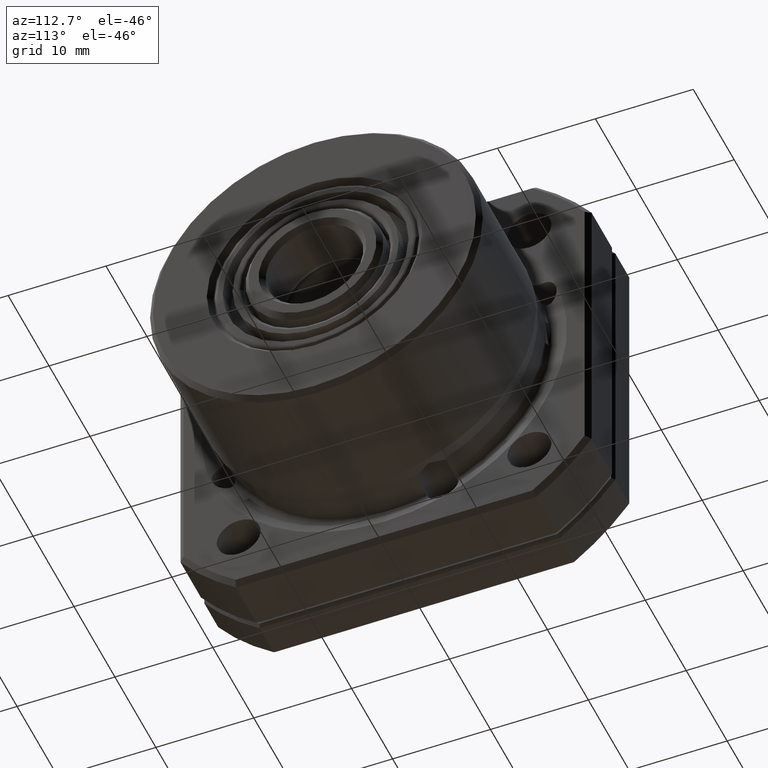
[diagram: clean part render]
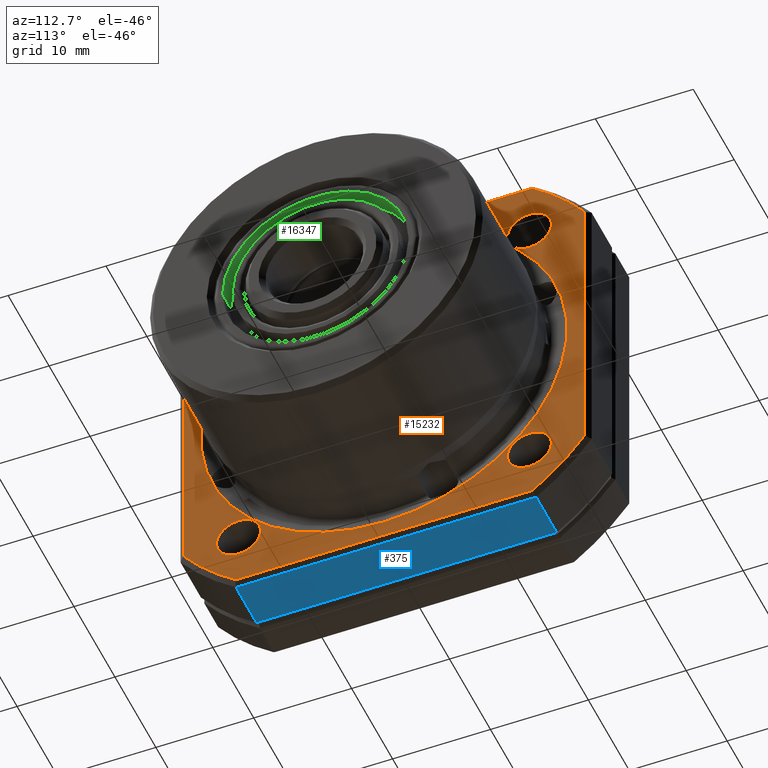
[diagram: same view with three faces highlighted in distinct colors, each labeled with its STEP entity id]
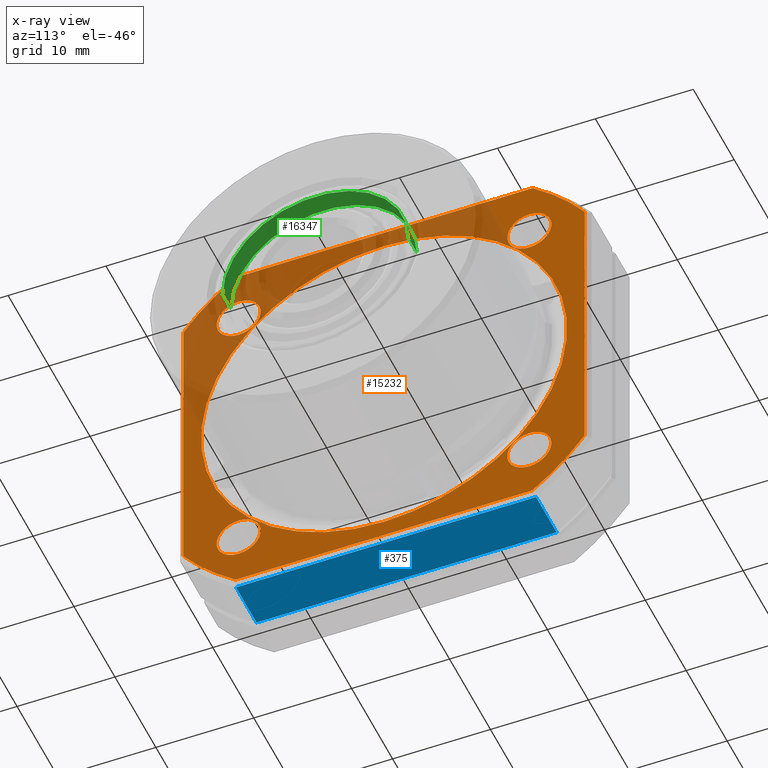
[diagram: x-ray of the same camera — body ghosted, the three highlighted faces saturated]
A machine part, auxiliary view with three faces highlighted in distinct colors.
The next image is the same camera in x-ray (body ghosted, the three faces saturated) — at least one of them is partly hidden behind the body in this view.
Their STEP definitions:

[orange] entity #15232 — the highlighted planar face has unit normal (-1, 0, -0).
#37 = EDGE_LOOP ( 'NONE', ( #39, #40 ) ) ;
#39 = ORIENTED_EDGE ( 'NONE', *, *, #45, .T. ) ;
#40 = ORIENTED_EDGE ( 'NONE', *, *, #15265, .T. ) ;
#45 = EDGE_CURVE ( 'NONE', #15253, #15278, #19049, .T. ) ;
#48 = ORIENTED_EDGE ( 'NONE', *, *, #19492, .T. ) ;
#55 = ORIENTED_EDGE ( 'NONE', *, *, #63, .T. ) ;
#58 = ORIENTED_EDGE ( 'NONE', *, *, #15612, .T. ) ;
#60 = EDGE_CURVE ( 'NONE', #15375, #19315, #19035, .T. ) ;
#61 = EDGE_LOOP ( 'NONE', ( #48, #55 ) ) ;
#63 = EDGE_CURVE ( 'NONE', #19482, #19540, #19090, .T. ) ;
#242 = EDGE_CURVE ( 'NONE', #15245, #15252, #19350, .T. ) ;
#245 = ORIENTED_EDGE ( 'NONE', *, *, #242, .T. ) ;
#248 = ORIENTED_EDGE ( 'NONE', *, *, #257, .T. ) ;
#249 = ORIENTED_EDGE ( 'NONE', *, *, #15249, .T. ) ;
#250 = EDGE_LOOP ( 'NONE', ( #245, #249 ) ) ;
#253 = EDGE_CURVE ( 'NONE', #15226, #15233, #19329, .T. ) ;
#254 = EDGE_LOOP ( 'NONE', ( #15324, #15326 ) ) ;
#257 = EDGE_CURVE ( 'NONE', #15233, #15315, #19385, .T. ) ;
#1042 = CARTESIAN_POINT ( 'NONE',  ( 6.000000000000000000, 14.84924240491752200, 14.84924240491747600 ) ) ;
#1043 = AXIS2_PLACEMENT_3D ( 'NONE', #1042, #1104, #1103 ) ;
#1044 = CIRCLE ( 'NONE', #1043, 2.249999999999998700 ) ;
#1045 = CARTESIAN_POINT ( 'NONE',  ( 6.000000000000000000, 14.84924240491752200, 12.59924240491747900 ) ) ;
#1073 = FACE_BOUND ( 'NONE', #61, .T. ) ;
#1074 = FACE_BOUND ( 'NONE', #15327, .T. ) ;
#1075 = FACE_BOUND ( 'NONE', #254, .T. ) ;
#1076 = FACE_BOUND ( 'NONE', #37, .T. ) ;
#1081 = FACE_BOUND ( 'NONE', #250, .T. ) ;
#1082 = FACE_OUTER_BOUND ( 'NONE', #15308, .T. ) ;
#1085 = CARTESIAN_POINT ( 'NONE',  ( 6.000000000000000000, -20.50000000000001400, 15.16575088810309400 ) ) ;
#1086 = CARTESIAN_POINT ( 'NONE',  ( 6.000000000000000000, -20.50000000000001400, -15.16575088810309400 ) ) ;
#1087 = DIRECTION ( 'NONE',  ( 0.0000000000000000000, 0.0000000000000000000, -1.000000000000000000 ) ) ;
#1088 = VECTOR ( 'NONE', #1087, 1000.000000000000000 ) ;
#1089 = CARTESIAN_POINT ( 'NONE',  ( 6.000000000000000000, -20.50000000000001400, -15.32970971675589000 ) ) ;
#1090 = LINE ( 'NONE', #1089, #1088 ) ;
#1103 = DIRECTION ( 'NONE',  ( 0.0000000000000000000, 0.0000000000000000000, 1.000000000000000000 ) ) ;
#1104 = DIRECTION ( 'NONE',  ( -1.000000000000000000, -0.0000000000000000000, -0.0000000000000000000 ) ) ;
#1112 = CARTESIAN_POINT ( 'NONE',  ( 6.000000000000000000, -14.84924240491752200, -12.59924240491747900 ) ) ;
#1113 = DIRECTION ( 'NONE',  ( 0.0000000000000000000, -1.000000000000000000, 0.0000000000000000000 ) ) ;
#1114 = VECTOR ( 'NONE', #1113, 1000.000000000000000 ) ;
#1115 = CARTESIAN_POINT ( 'NONE',  ( 6.000000000000000000, -15.32970971675587400, 20.50000000000001800 ) ) ;
#1116 = LINE ( 'NONE', #1115, #1114 ) ;
#1117 = CARTESIAN_POINT ( 'NONE',  ( 6.000000000000000000, 15.16575088810308700, 20.50000000000001800 ) ) ;
#1118 = DIRECTION ( 'NONE',  ( 0.0000000000000000000, 0.0000000000000000000, 1.000000000000000000 ) ) ;
#1119 = DIRECTION ( 'NONE',  ( 1.000000000000000000, 0.0000000000000000000, 0.0000000000000000000 ) ) ;
#1120 = CARTESIAN_POINT ( 'NONE',  ( 6.000000000000000000, 0.0000000000000000000, 0.0000000000000000000 ) ) ;
#1121 = AXIS2_PLACEMENT_3D ( 'NONE', #1120, #1119, #1118 ) ;
#1122 = CIRCLE ( 'NONE', #1121, 25.50000000000000700 ) ;
#1123 = CARTESIAN_POINT ( 'NONE',  ( 6.000000000000000000, -15.16575088810308700, 20.50000000000001800 ) ) ;
#1133 = CARTESIAN_POINT ( 'NONE',  ( 6.000000000000000000, -15.16575088810308700, -20.50000000000001800 ) ) ;
#1134 = DIRECTION ( 'NONE',  ( -0.0000000000000000000, 0.0000000000000000000, 1.000000000000000000 ) ) ;
#1135 = DIRECTION ( 'NONE',  ( -1.000000000000000000, 0.0000000000000000000, -0.0000000000000000000 ) ) ;
#1136 = CARTESIAN_POINT ( 'NONE',  ( 6.000000000000000000, 26.00000000000000000, 0.0000000000000000000 ) ) ;
#1137 = AXIS2_PLACEMENT_3D ( 'NONE', #1136, #1135, #1134 ) ;
#1138 = PLANE ( 'NONE',  #1137 ) ;
#1139 = CARTESIAN_POINT ( 'NONE',  ( 6.000000000000000000, -14.84924240491752200, 14.84924240491747600 ) ) ;
#1140 = AXIS2_PLACEMENT_3D ( 'NONE', #1139, #1195, #1194 ) ;
#1141 = CIRCLE ( 'NONE', #1140, 2.249999999999998700 ) ;
#1151 = DIRECTION ( 'NONE',  ( 0.0000000000000000000, -1.652117596168386800E-016, 1.000000000000000000 ) ) ;
#1152 = VECTOR ( 'NONE', #1151, 1000.000000000000000 ) ;
#1153 = CARTESIAN_POINT ( 'NONE',  ( 6.000000000000000000, 20.49999999999999600, 15.32970971675590200 ) ) ;
#1154 = LINE ( 'NONE', #1153, #1152 ) ;
#1155 = CARTESIAN_POINT ( 'NONE',  ( 6.000000000000000000, 20.49999999999999600, 15.16575088810312300 ) ) ;
#1156 = DIRECTION ( 'NONE',  ( 0.0000000000000000000, 1.243449787580175300E-014, 1.000000000000000000 ) ) ;
#1157 = DIRECTION ( 'NONE',  ( 1.000000000000000000, 0.0000000000000000000, 0.0000000000000000000 ) ) ;
#1158 = CARTESIAN_POINT ( 'NONE',  ( 6.000000000000000000, 0.0000000000000000000, 0.0000000000000000000 ) ) ;
#1159 = AXIS2_PLACEMENT_3D ( 'NONE', #1158, #1157, #1156 ) ;
#1160 = CIRCLE ( 'NONE', #1159, 25.50000000000000700 ) ;
#1161 = CARTESIAN_POINT ( 'NONE',  ( 6.000000000000000000, -14.84924240491752200, 17.09924240491747600 ) ) ;
#1162 = CARTESIAN_POINT ( 'NONE',  ( 6.000000000000000000, -14.84924240491752200, -17.09924240491747600 ) ) ;
#1163 = DIRECTION ( 'NONE',  ( 0.0000000000000000000, 0.0000000000000000000, 1.000000000000000000 ) ) ;
#1164 = DIRECTION ( 'NONE',  ( -1.000000000000000000, -0.0000000000000000000, -0.0000000000000000000 ) ) ;
#1165 = CARTESIAN_POINT ( 'NONE',  ( 6.000000000000000000, -14.84924240491752200, -14.84924240491747600 ) ) ;
#1166 = AXIS2_PLACEMENT_3D ( 'NONE', #1165, #1164, #1163 ) ;
#1167 = CIRCLE ( 'NONE', #1166, 2.249999999999996900 ) ;
#1168 = CARTESIAN_POINT ( 'NONE',  ( 6.000000000000000000, -14.84924240491752200, 12.59924240491747900 ) ) ;
#1173 = CARTESIAN_POINT ( 'NONE',  ( 6.000000000000000000, 20.50000000000000400, -15.16575088810311200 ) ) ;
#1175 = DIRECTION ( 'NONE',  ( 0.0000000000000000000, 0.0000000000000000000, 1.000000000000000000 ) ) ;
#1176 = DIRECTION ( 'NONE',  ( 1.000000000000000000, 0.0000000000000000000, 0.0000000000000000000 ) ) ;
#1177 = CARTESIAN_POINT ( 'NONE',  ( 6.000000000000000000, 0.0000000000000000000, 0.0000000000000000000 ) ) ;
#1178 = AXIS2_PLACEMENT_3D ( 'NONE', #1177, #1176, #1175 ) ;
#1179 = CIRCLE ( 'NONE', #1178, 25.50000000000000700 ) ;
#1194 = DIRECTION ( 'NONE',  ( 0.0000000000000000000, 0.0000000000000000000, 1.000000000000000000 ) ) ;
#1195 = DIRECTION ( 'NONE',  ( -1.000000000000000000, -0.0000000000000000000, -0.0000000000000000000 ) ) ;
#1206 = CARTESIAN_POINT ( 'NONE',  ( 6.000000000000000000, 14.84924240491752200, 17.09924240491747600 ) ) ;
#1259 = DIRECTION ( 'NONE',  ( 0.0000000000000000000, 0.0000000000000000000, 1.000000000000000000 ) ) ;
#1260 = DIRECTION ( 'NONE',  ( -1.000000000000000000, -0.0000000000000000000, -0.0000000000000000000 ) ) ;
#1261 = CARTESIAN_POINT ( 'NONE',  ( 6.000000000000000000, 14.84924240491752200, 14.84924240491747600 ) ) ;
#1262 = AXIS2_PLACEMENT_3D ( 'NONE', #1261, #1260, #1259 ) ;
#1263 = CIRCLE ( 'NONE', #1262, 2.249999999999998700 ) ;
#1273 = CARTESIAN_POINT ( 'NONE',  ( 6.000000000000000000, 15.16575088810308700, -20.50000000000001800 ) ) ;
#1406 = CARTESIAN_POINT ( 'NONE',  ( 6.000000000000000000, 14.84924240491752200, -12.59924240491747900 ) ) ;
#1844 = DIRECTION ( 'NONE',  ( 0.0000000000000000000, 0.0000000000000000000, 1.000000000000000000 ) ) ;
#1845 = DIRECTION ( 'NONE',  ( -1.000000000000000000, -0.0000000000000000000, -0.0000000000000000000 ) ) ;
#1846 = CARTESIAN_POINT ( 'NONE',  ( 6.000000000000000000, 14.84924240491752200, -14.84924240491747600 ) ) ;
#1847 = AXIS2_PLACEMENT_3D ( 'NONE', #1846, #1845, #1844 ) ;
#1848 = CIRCLE ( 'NONE', #1847, 2.249999999999996900 ) ;
#14582 = CARTESIAN_POINT ( 'NONE',  ( 6.000000000000000000, 14.84924240491752200, -17.09924240491747600 ) ) ;
#14603 = DIRECTION ( 'NONE',  ( 0.0000000000000000000, 0.0000000000000000000, 1.000000000000000000 ) ) ;
#14604 = DIRECTION ( 'NONE',  ( -1.000000000000000000, -0.0000000000000000000, -0.0000000000000000000 ) ) ;
#14605 = CARTESIAN_POINT ( 'NONE',  ( 6.000000000000005300, 0.0000000000000000000, 0.0000000000000000000 ) ) ;
#14606 = AXIS2_PLACEMENT_3D ( 'NONE', #14605, #14604, #14603 ) ;
#14607 = CIRCLE ( 'NONE', #14606, 18.70000000000000300 ) ;
#14627 = CARTESIAN_POINT ( 'NONE',  ( 6.000000000000005300, 2.290013881647845200E-015, 18.70000000000000300 ) ) ;
#14692 = CARTESIAN_POINT ( 'NONE',  ( 6.000000000000005300, 0.0000000000000000000, -18.70000000000000300 ) ) ;
#15214 = VERTEX_POINT ( 'NONE', #1045 ) ;
#15215 = EDGE_CURVE ( 'NONE', #15214, #15287, #1044, .T. ) ;
#15224 = EDGE_CURVE ( 'NONE', #15229, #15226, #1090, .T. ) ;
#15226 = VERTEX_POINT ( 'NONE', #1086 ) ;
#15228 = ORIENTED_EDGE ( 'NONE', *, *, #15224, .T. ) ;
#15229 = VERTEX_POINT ( 'NONE', #1085 ) ;
#15230 = ORIENTED_EDGE ( 'NONE', *, *, #253, .T. ) ;
#15232 = ADVANCED_FACE ( 'NONE', ( #1082, #1081, #1076, #1075, #1074, #1073 ), #1138, .F. ) ;
#15233 = VERTEX_POINT ( 'NONE', #1133 ) ;
#15240 = VERTEX_POINT ( 'NONE', #1123 ) ;
#15241 = EDGE_CURVE ( 'NONE', #15240, #15229, #1122, .T. ) ;
#15242 = VERTEX_POINT ( 'NONE', #1117 ) ;
#15243 = EDGE_CURVE ( 'NONE', #15242, #15240, #1116, .T. ) ;
#15245 = VERTEX_POINT ( 'NONE', #1112 ) ;
#15248 = ORIENTED_EDGE ( 'NONE', *, *, #15241, .T. ) ;
#15249 = EDGE_CURVE ( 'NONE', #15252, #15245, #1167, .T. ) ;
#15250 = ORIENTED_EDGE ( 'NONE', *, *, #15243, .T. ) ;
#15252 = VERTEX_POINT ( 'NONE', #1162 ) ;
#15253 = VERTEX_POINT ( 'NONE', #1161 ) ;
#15254 = EDGE_CURVE ( 'NONE', #15255, #15242, #1160, .T. ) ;
#15255 = VERTEX_POINT ( 'NONE', #1155 ) ;
#15257 = EDGE_CURVE ( 'NONE', #15276, #15255, #1154, .T. ) ;
#15260 = ORIENTED_EDGE ( 'NONE', *, *, #15257, .T. ) ;
#15265 = EDGE_CURVE ( 'NONE', #15278, #15253, #1141, .T. ) ;
#15271 = EDGE_CURVE ( 'NONE', #15315, #15276, #1179, .T. ) ;
#15274 = ORIENTED_EDGE ( 'NONE', *, *, #15254, .T. ) ;
#15276 = VERTEX_POINT ( 'NONE', #1173 ) ;
#15278 = VERTEX_POINT ( 'NONE', #1168 ) ;
#15287 = VERTEX_POINT ( 'NONE', #1206 ) ;
#15308 = EDGE_LOOP ( 'NONE', ( #15228, #15230, #248, #15314, #15260, #15274, #15250, #15248 ) ) ;
#15314 = ORIENTED_EDGE ( 'NONE', *, *, #15271, .T. ) ;
#15315 = VERTEX_POINT ( 'NONE', #1273 ) ;
#15323 = EDGE_CURVE ( 'NONE', #15287, #15214, #1263, .T. ) ;
#15324 = ORIENTED_EDGE ( 'NONE', *, *, #15323, .T. ) ;
#15326 = ORIENTED_EDGE ( 'NONE', *, *, #15215, .T. ) ;
#15327 = EDGE_LOOP ( 'NONE', ( #15329, #58 ) ) ;
#15329 = ORIENTED_EDGE ( 'NONE', *, *, #60, .T. ) ;
#15375 = VERTEX_POINT ( 'NONE', #1406 ) ;
#15612 = EDGE_CURVE ( 'NONE', #19315, #15375, #1848, .T. ) ;
#19028 = DIRECTION ( 'NONE',  ( -1.000000000000000000, -0.0000000000000000000, -0.0000000000000000000 ) ) ;
#19029 = CARTESIAN_POINT ( 'NONE',  ( 6.000000000000000000, 14.84924240491752200, -14.84924240491747600 ) ) ;
#19030 = AXIS2_PLACEMENT_3D ( 'NONE', #19029, #19028, #19092 ) ;
#19035 = CIRCLE ( 'NONE', #19030, 2.249999999999996900 ) ;
#19045 = DIRECTION ( 'NONE',  ( 0.0000000000000000000, 0.0000000000000000000, 1.000000000000000000 ) ) ;
#19046 = DIRECTION ( 'NONE',  ( -1.000000000000000000, -0.0000000000000000000, -0.0000000000000000000 ) ) ;
#19047 = CARTESIAN_POINT ( 'NONE',  ( 6.000000000000000000, -14.84924240491752200, 14.84924240491747600 ) ) ;
#19048 = AXIS2_PLACEMENT_3D ( 'NONE', #19047, #19046, #19045 ) ;
#19049 = CIRCLE ( 'NONE', #19048, 2.249999999999998700 ) ;
#19086 = DIRECTION ( 'NONE',  ( 0.0000000000000000000, 0.0000000000000000000, 1.000000000000000000 ) ) ;
#19087 = DIRECTION ( 'NONE',  ( -1.000000000000000000, -0.0000000000000000000, -0.0000000000000000000 ) ) ;
#19088 = CARTESIAN_POINT ( 'NONE',  ( 6.000000000000005300, 0.0000000000000000000, 0.0000000000000000000 ) ) ;
#19089 = AXIS2_PLACEMENT_3D ( 'NONE', #19088, #19087, #19086 ) ;
#19090 = CIRCLE ( 'NONE', #19089, 18.70000000000000300 ) ;
#19092 = DIRECTION ( 'NONE',  ( 0.0000000000000000000, 0.0000000000000000000, 1.000000000000000000 ) ) ;
#19315 = VERTEX_POINT ( 'NONE', #14582 ) ;
#19325 = DIRECTION ( 'NONE',  ( 0.0000000000000000000, 0.0000000000000000000, 1.000000000000000000 ) ) ;
#19326 = DIRECTION ( 'NONE',  ( 1.000000000000000000, 0.0000000000000000000, 0.0000000000000000000 ) ) ;
#19327 = CARTESIAN_POINT ( 'NONE',  ( 6.000000000000000000, 0.0000000000000000000, 0.0000000000000000000 ) ) ;
#19328 = AXIS2_PLACEMENT_3D ( 'NONE', #19327, #19326, #19325 ) ;
#19329 = CIRCLE ( 'NONE', #19328, 25.50000000000000700 ) ;
#19342 = DIRECTION ( 'NONE',  ( 0.0000000000000000000, 0.0000000000000000000, 1.000000000000000000 ) ) ;
#19343 = DIRECTION ( 'NONE',  ( -1.000000000000000000, -0.0000000000000000000, -0.0000000000000000000 ) ) ;
#19344 = CARTESIAN_POINT ( 'NONE',  ( 6.000000000000000000, -14.84924240491752200, -14.84924240491747600 ) ) ;
#19345 = AXIS2_PLACEMENT_3D ( 'NONE', #19344, #19343, #19342 ) ;
#19350 = CIRCLE ( 'NONE', #19345, 2.249999999999996900 ) ;
#19381 = DIRECTION ( 'NONE',  ( 0.0000000000000000000, 1.000000000000000000, 0.0000000000000000000 ) ) ;
#19382 = VECTOR ( 'NONE', #19381, 1000.000000000000000 ) ;
#19384 = CARTESIAN_POINT ( 'NONE',  ( 6.000000000000000000, 15.32970971675587400, -20.50000000000001800 ) ) ;
#19385 = LINE ( 'NONE', #19384, #19382 ) ;
#19482 = VERTEX_POINT ( 'NONE', #14627 ) ;
#19492 = EDGE_CURVE ( 'NONE', #19540, #19482, #14607, .T. ) ;
#19540 = VERTEX_POINT ( 'NONE', #14692 ) ;

[blue] entity #375 — the highlighted planar face has unit normal (0, 0, -1).
#42 = EDGE_CURVE ( 'NONE', #47, #256, #19057, .T. ) ;
#47 = VERTEX_POINT ( 'NONE', #19044 ) ;
#251 = VERTEX_POINT ( 'NONE', #19331 ) ;
#256 = VERTEX_POINT ( 'NONE', #19320 ) ;
#375 = ADVANCED_FACE ( 'NONE', ( #483 ), #464, .T. ) ;
#380 = EDGE_LOOP ( 'NONE', ( #400, #398, #390, #15481 ) ) ;
#390 = ORIENTED_EDGE ( 'NONE', *, *, #42, .T. ) ;
#397 = EDGE_CURVE ( 'NONE', #15237, #47, #555, .T. ) ;
#398 = ORIENTED_EDGE ( 'NONE', *, *, #397, .T. ) ;
#400 = ORIENTED_EDGE ( 'NONE', *, *, #15263, .T. ) ;
#460 = DIRECTION ( 'NONE',  ( -1.000000000000000000, 0.0000000000000000000, -0.0000000000000000000 ) ) ;
#461 = DIRECTION ( 'NONE',  ( 0.0000000000000000000, 0.0000000000000000000, -1.000000000000000000 ) ) ;
#462 = CARTESIAN_POINT ( 'NONE',  ( 10.00000000000000000, -21.00000000000000400, -21.00000000000001100 ) ) ;
#463 = AXIS2_PLACEMENT_3D ( 'NONE', #462, #461, #460 ) ;
#464 = PLANE ( 'NONE',  #463 ) ;
#483 = FACE_OUTER_BOUND ( 'NONE', #380, .T. ) ;
#549 = DIRECTION ( 'NONE',  ( -0.0000000000000000000, 1.000000000000000000, 0.0000000000000000000 ) ) ;
#550 = VECTOR ( 'NONE', #549, 1000.000000000000000 ) ;
#551 = CARTESIAN_POINT ( 'NONE',  ( 0.5000000000000073300, 15.32970971675585900, -21.00000000000001100 ) ) ;
#555 = LINE ( 'NONE', #551, #550 ) ;
#1132 = CARTESIAN_POINT ( 'NONE',  ( 0.5000000000000143200, -15.32970971675587400, -21.00000000000001100 ) ) ;
#1142 = DIRECTION ( 'NONE',  ( -1.000000000000000000, -0.0000000000000000000, -0.0000000000000000000 ) ) ;
#1143 = VECTOR ( 'NONE', #1142, 1000.000000000000000 ) ;
#1144 = CARTESIAN_POINT ( 'NONE',  ( -94.46891865289678900, -15.32970971675587400, -21.00000000000001100 ) ) ;
#1145 = LINE ( 'NONE', #1144, #1143 ) ;
#1605 = DIRECTION ( 'NONE',  ( 0.0000000000000000000, -1.000000000000000000, 0.0000000000000000000 ) ) ;
#1606 = VECTOR ( 'NONE', #1605, 1000.000000000000000 ) ;
#1607 = CARTESIAN_POINT ( 'NONE',  ( 5.500000000000000000, -15.32970971675587400, -21.00000000000001100 ) ) ;
#1608 = LINE ( 'NONE', #1607, #1606 ) ;
#15237 = VERTEX_POINT ( 'NONE', #1132 ) ;
#15263 = EDGE_CURVE ( 'NONE', #251, #15237, #1145, .T. ) ;
#15481 = ORIENTED_EDGE ( 'NONE', *, *, #15482, .T. ) ;
#15482 = EDGE_CURVE ( 'NONE', #256, #251, #1608, .T. ) ;
#19044 = CARTESIAN_POINT ( 'NONE',  ( 0.5000000000000143200, 15.32970971675587400, -21.00000000000001100 ) ) ;
#19054 = DIRECTION ( 'NONE',  ( 1.000000000000000000, 0.0000000000000000000, 0.0000000000000000000 ) ) ;
#19055 = VECTOR ( 'NONE', #19054, 1000.000000000000000 ) ;
#19056 = CARTESIAN_POINT ( 'NONE',  ( -94.46891865289678900, 15.32970971675587400, -21.00000000000001100 ) ) ;
#19057 = LINE ( 'NONE', #19056, #19055 ) ;
#19320 = CARTESIAN_POINT ( 'NONE',  ( 5.499999999999991100, 15.32970971675587400, -21.00000000000001100 ) ) ;
#19331 = CARTESIAN_POINT ( 'NONE',  ( 5.499999999999991100, -15.32970971675587400, -21.00000000000001100 ) ) ;

[green] entity #16347 — the highlighted cylindrical surface (partial cylindrical patch) has radius 9.5 mm, axis along (1, 0, -0).
#2972 = CARTESIAN_POINT ( 'NONE',  ( 22.69999999999999900, -9.499999999999991100, -1.745121688784974500E-015 ) ) ;
#2973 = DIRECTION ( 'NONE',  ( 0.0000000000000000000, -1.000000000000000000, -1.836970198721029400E-016 ) ) ;
#2974 = DIRECTION ( 'NONE',  ( 1.000000000000000000, 0.0000000000000000000, -1.232595164407830900E-032 ) ) ;
#2975 = CARTESIAN_POINT ( 'NONE',  ( 22.69999999999999900, -1.872742500049269400E-016, 1.840601620477767100E-030 ) ) ;
#2976 = AXIS2_PLACEMENT_3D ( 'NONE', #2975, #2974, #2973 ) ;
#2977 = CIRCLE ( 'NONE', #2976, 9.499999999999991100 ) ;
#2978 = CARTESIAN_POINT ( 'NONE',  ( 22.69999999999999900, 9.499999999999991100, 5.817456526537211100E-016 ) ) ;
#2979 = DIRECTION ( 'NONE',  ( 1.000000000000000000, 0.0000000000000000000, -1.232595164407830900E-032 ) ) ;
#2980 = VECTOR ( 'NONE', #2979, 1000.000000000000000 ) ;
#2981 = CARTESIAN_POINT ( 'NONE',  ( 75.34089506172838900, 9.499999999999991100, 5.817456526537204200E-016 ) ) ;
#2982 = LINE ( 'NONE', #2981, #2980 ) ;
#2983 = CARTESIAN_POINT ( 'NONE',  ( 20.69999999999999600, -9.499999999999991100, -1.745121688784974500E-015 ) ) ;
#2984 = DIRECTION ( 'NONE',  ( 0.0000000000000000000, -1.000000000000000000, -1.836970198721029400E-016 ) ) ;
#2985 = DIRECTION ( 'NONE',  ( 1.000000000000000000, 0.0000000000000000000, -1.232595164407830900E-032 ) ) ;
#2986 = AXIS2_PLACEMENT_3D ( 'NONE', #2992, #2985, #2984 ) ;
#2987 = CIRCLE ( 'NONE', #2986, 9.499999999999991100 ) ;
#2992 = CARTESIAN_POINT ( 'NONE',  ( 20.69999999999999600, -1.872742500049269400E-016, 1.865253523765924500E-030 ) ) ;
#3028 = DIRECTION ( 'NONE',  ( 1.000000000000000000, 0.0000000000000000000, -1.232595164407830900E-032 ) ) ;
#3029 = VECTOR ( 'NONE', #3028, 1000.000000000000000 ) ;
#3030 = CARTESIAN_POINT ( 'NONE',  ( 75.34089506172838900, -9.499999999999991100, -1.745121688784975300E-015 ) ) ;
#3031 = LINE ( 'NONE', #3030, #3029 ) ;
#3052 = DIRECTION ( 'NONE',  ( 0.0000000000000000000, -1.000000000000000000, -1.836970198721029400E-016 ) ) ;
#3053 = DIRECTION ( 'NONE',  ( 1.000000000000000000, 0.0000000000000000000, -1.232595164407830900E-032 ) ) ;
#3054 = CARTESIAN_POINT ( 'NONE',  ( 75.34089506172838900, -1.872742500049253800E-016, 1.191752493445902600E-030 ) ) ;
#3055 = AXIS2_PLACEMENT_3D ( 'NONE', #3054, #3053, #3052 ) ;
#3056 = CARTESIAN_POINT ( 'NONE',  ( 20.69999999999999600, 9.499999999999991100, 5.817456526537211100E-016 ) ) ;
#3057 = CYLINDRICAL_SURFACE ( 'NONE', #3055, 9.499999999999991100 ) ;
#3058 = FACE_OUTER_BOUND ( 'NONE', #16348, .T. ) ;
#16320 = EDGE_CURVE ( 'NONE', #16350, #16322, #2987, .T. ) ;
#16322 = VERTEX_POINT ( 'NONE', #2983 ) ;
#16323 = ORIENTED_EDGE ( 'NONE', *, *, #16324, .T. ) ;
#16324 = EDGE_CURVE ( 'NONE', #16350, #16325, #2982, .T. ) ;
#16325 = VERTEX_POINT ( 'NONE', #2978 ) ;
#16326 = ORIENTED_EDGE ( 'NONE', *, *, #16327, .T. ) ;
#16327 = EDGE_CURVE ( 'NONE', #16325, #16328, #2977, .T. ) ;
#16328 = VERTEX_POINT ( 'NONE', #2972 ) ;
#16329 = ORIENTED_EDGE ( 'NONE', *, *, #16330, .F. ) ;
#16330 = EDGE_CURVE ( 'NONE', #16322, #16328, #3031, .T. ) ;
#16347 = ADVANCED_FACE ( 'NONE', ( #3058 ), #3057, .F. ) ;
#16348 = EDGE_LOOP ( 'NONE', ( #16349, #16323, #16326, #16329 ) ) ;
#16349 = ORIENTED_EDGE ( 'NONE', *, *, #16320, .F. ) ;
#16350 = VERTEX_POINT ( 'NONE', #3056 ) ;